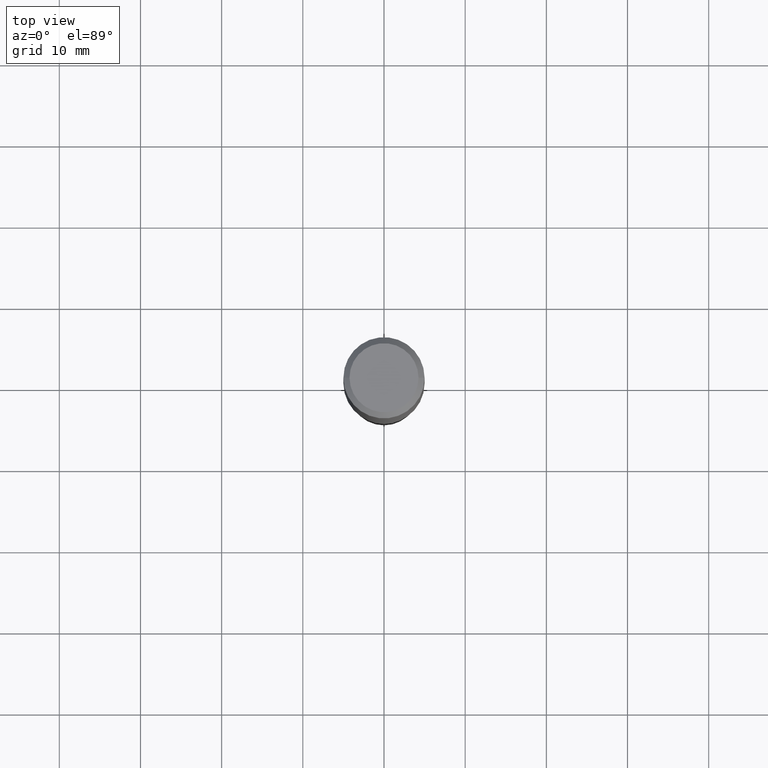
[diagram: clean part render]
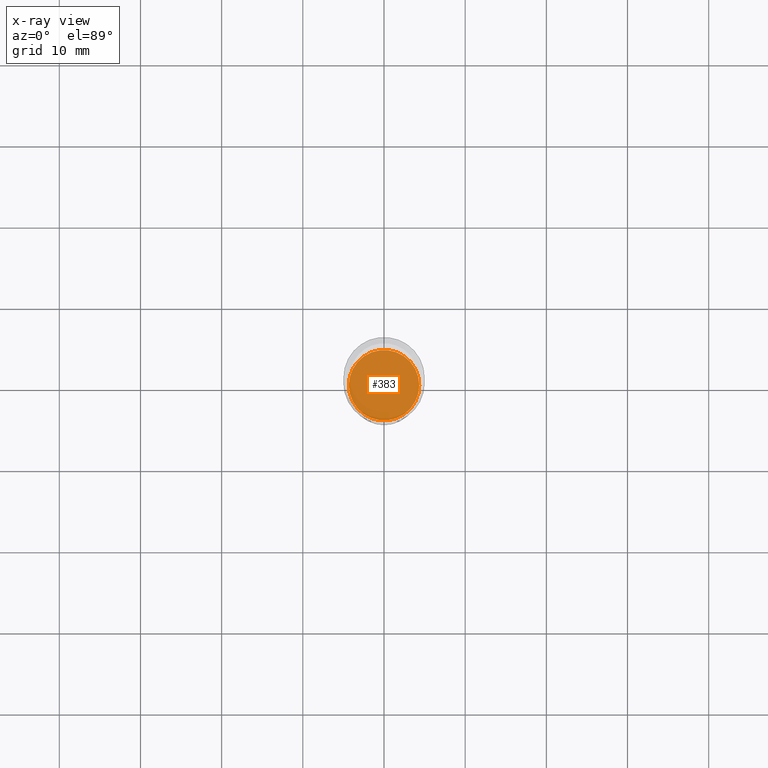
[diagram: x-ray — body ghosted, one internal face saturated and labeled with its STEP entity id]
A machine part, top view, then the same camera in x-ray: the body is ghosted and one INTERNAL B-rep face — a face not visible from any outside direction — is saturated and labeled: STEP entity #383.
In plain terms, the highlighted planar face has unit normal (-0, 0, 1).
Its self-contained STEP definition (entity closure, byte-faithful):
#18 = PLANE ( 'NONE',  #100 ) ;
#26 = DIRECTION ( 'NONE',  ( 1.000000000000000000, -6.982962677686265922E-15, 4.876176775795935793E-29 ) ) ;
#47 = CARTESIAN_POINT ( 'NONE',  ( 0.1707500000000000129, -8.614881055461571866E-15, -2.125899999999999679 ) ) ;
#88 = DIRECTION ( 'NONE',  ( 1.000000000000000000, -6.982962677686265922E-15, 0.000000000000000000 ) ) ;
#98 = EDGE_LOOP ( 'NONE', ( #235, #300 ) ) ;
#100 = AXIS2_PLACEMENT_3D ( 'NONE', #365, #217, #26 ) ;
#114 = CARTESIAN_POINT ( 'NONE',  ( -0.1707500000000000129, -6.206639229762160364E-15, -2.125899999999999679 ) ) ;
#125 = VERTEX_POINT ( 'NONE', #47 ) ;
#130 = VERTEX_POINT ( 'NONE', #114 ) ;
#206 = CARTESIAN_POINT ( 'NONE',  ( 5.198822135068982087E-29, -7.422540178246643119E-15, -2.125899999999999679 ) ) ;
#217 = DIRECTION ( 'NONE',  ( -2.438088387897960049E-29, 3.491481338843145188E-15, 1.000000000000000000 ) ) ;
#231 = EDGE_CURVE ( 'NONE', #125, #130, #340, .T. ) ;
#235 = ORIENTED_EDGE ( 'NONE', *, *, #231, .F. ) ;
#245 = CIRCLE ( 'NONE', #260, 0.1707500000000000129 ) ;
#259 = DIRECTION ( 'NONE',  ( -2.445468806185136597E-29, 3.491481338843145583E-15, 1.000000000000000000 ) ) ;
#260 = AXIS2_PLACEMENT_3D ( 'NONE', #452, #259, #263 ) ;
#263 = DIRECTION ( 'NONE',  ( 1.000000000000000000, -6.982962677686265922E-15, 0.000000000000000000 ) ) ;
#280 = AXIS2_PLACEMENT_3D ( 'NONE', #206, #332, #88 ) ;
#300 = ORIENTED_EDGE ( 'NONE', *, *, #424, .F. ) ;
#332 = DIRECTION ( 'NONE',  ( -2.445468806185136597E-29, 3.491481338843145583E-15, 1.000000000000000000 ) ) ;
#340 = CIRCLE ( 'NONE', #280, 0.1707500000000000129 ) ;
#365 = CARTESIAN_POINT ( 'NONE',  ( 5.198822135068982087E-29, -7.422540178246643119E-15, -2.125899999999999679 ) ) ;
#383 = ADVANCED_FACE ( 'NONE', ( #398 ), #18, .F. ) ;
#398 = FACE_OUTER_BOUND ( 'NONE', #98, .T. ) ;
#424 = EDGE_CURVE ( 'NONE', #130, #125, #245, .T. ) ;
#452 = CARTESIAN_POINT ( 'NONE',  ( 5.198822135068982087E-29, -7.422540178246643119E-15, -2.125899999999999679 ) ) ;